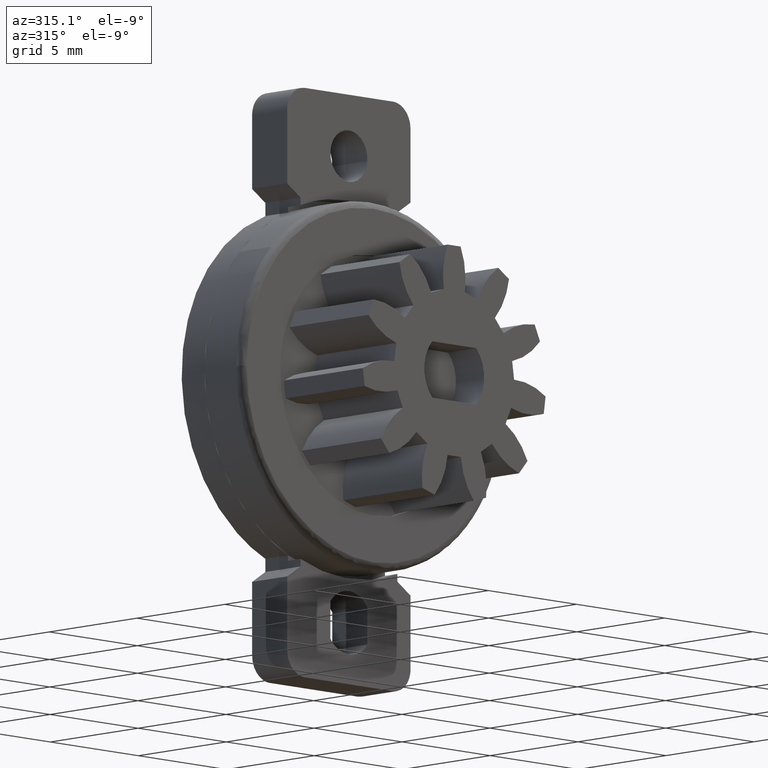
[diagram: clean part render]
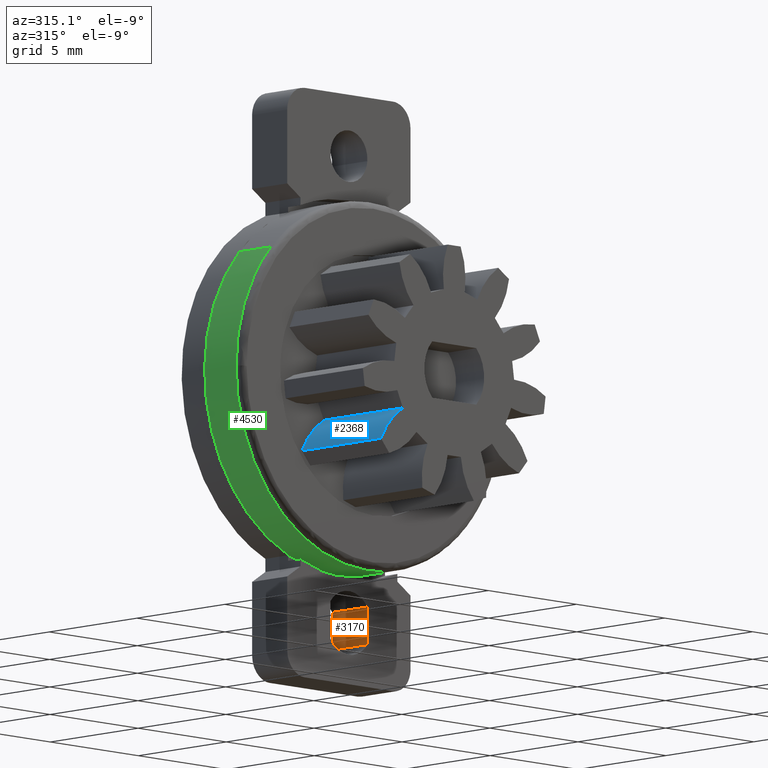
[diagram: same view with three faces highlighted in distinct colors, each labeled with its STEP entity id]
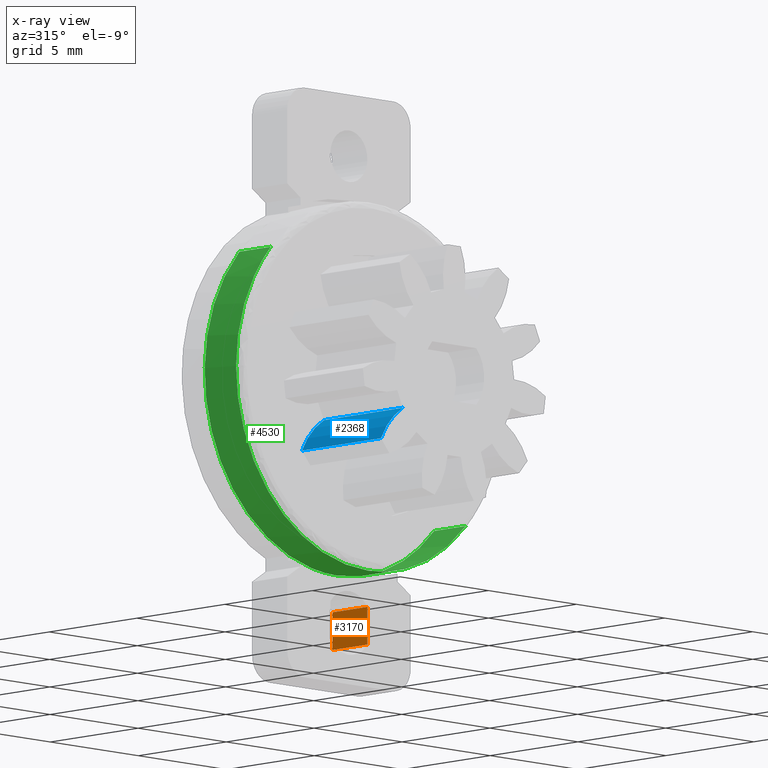
[diagram: x-ray of the same camera — body ghosted, the three highlighted faces saturated]
A machine part, auxiliary view with three faces highlighted in distinct colors.
The next image is the same camera in x-ray (body ghosted, the three faces saturated) — at least one of them is partly hidden behind the body in this view.
Their STEP definitions:

[orange] entity #3170 — the highlighted face is a freeform B-spline surface patch.
#3013=CARTESIAN_POINT('',(1.050000000000000,0.0,-8.733514514162200));
#3014=VERTEX_POINT('',#3013);
#3033=CARTESIAN_POINT('',(1.050000000000000,-2.0,-8.733514514162200));
#3034=VERTEX_POINT('',#3033);
#3035=CARTESIAN_POINT('',(1.050000000000000,-2.0,-8.733514514162200));
#3036=CARTESIAN_POINT('',(1.050000000000000,0.0,-8.733514514162200));
#3037=QUASI_UNIFORM_CURVE('',1,(#3035,#3036),.UNSPECIFIED.,.F.,.U.);
#3038=EDGE_CURVE('',#3034,#3014,#3037,.T.);
#3107=CARTESIAN_POINT('',(1.050000000000000,0.0,-10.266485485837800));
#3108=VERTEX_POINT('',#3107);
#3125=CARTESIAN_POINT('',(1.050000000000000,-2.0,-10.266485485837800));
#3126=VERTEX_POINT('',#3125);
#3143=CARTESIAN_POINT('',(1.050000000000000,-2.0,-10.266485485837800));
#3144=CARTESIAN_POINT('',(1.050000000000000,0.0,-10.266485485837800));
#3145=QUASI_UNIFORM_CURVE('',1,(#3143,#3144),.UNSPECIFIED.,.F.,.U.);
#3146=EDGE_CURVE('',#3126,#3108,#3145,.T.);
#3151=CARTESIAN_POINT('',(1.050000000000000,-2.099899996123612,-10.343057382901801));
#3152=CARTESIAN_POINT('',(1.050000000000000,-2.099899996123612,-8.656942575980715));
#3153=CARTESIAN_POINT('',(1.050000000000000,0.099900049767792,-10.343057382901801));
#3154=CARTESIAN_POINT('',(1.050000000000000,0.099900049767792,-8.656942575980715));
#3155=B_SPLINE_SURFACE_WITH_KNOTS('',1,1,((#3151,#3153),(#3152,#3154)),.UNSPECIFIED.,.F.,.F.,.U.,(2,2),(2,2),(0.041708334948495,0.958291687403247),(0.0,2.199800045891404),.UNSPECIFIED.);
#3156=CARTESIAN_POINT('',(1.050000000000000,0.0,-10.266485485837800));
#3157=CARTESIAN_POINT('',(1.050000000000000,0.0,-8.733514514162200));
#3158=QUASI_UNIFORM_CURVE('',1,(#3156,#3157),.UNSPECIFIED.,.F.,.U.);
#3159=EDGE_CURVE('',#3108,#3014,#3158,.T.);
#3160=ORIENTED_EDGE('',*,*,#3159,.F.);
#3161=ORIENTED_EDGE('',*,*,#3146,.F.);
#3162=CARTESIAN_POINT('',(1.050000000000000,-2.0,-10.266485485837800));
#3163=CARTESIAN_POINT('',(1.050000000000000,-2.0,-8.733514514162200));
#3164=QUASI_UNIFORM_CURVE('',1,(#3162,#3163),.UNSPECIFIED.,.F.,.U.);
#3165=EDGE_CURVE('',#3126,#3034,#3164,.T.);
#3166=ORIENTED_EDGE('',*,*,#3165,.T.);
#3167=ORIENTED_EDGE('',*,*,#3038,.T.);
#3168=EDGE_LOOP('',(#3160,#3161,#3166,#3167));
#3169=FACE_OUTER_BOUND('',#3168,.T.);
#3170=ADVANCED_FACE('',(#3169),#3155,.T.);

[blue] entity #2368 — the highlighted face is a freeform B-spline surface patch.
#629=CARTESIAN_POINT('',(-2.917143608324255,-8.0,-1.746503125795350));
#630=VERTEX_POINT('',#629);
#644=CARTESIAN_POINT('',(-4.157864792182010,-8.0,-3.122844916087450));
#645=VERTEX_POINT('',#644);
#646=CARTESIAN_POINT('',(-2.917143608324253,-8.0,-1.746503125795355));
#647=CARTESIAN_POINT('',(-3.748653505494959,-8.0,-2.244330737159556));
#648=CARTESIAN_POINT('',(-4.157864792181999,-8.0,-3.122844916087455));
#656=(BOUNDED_CURVE()B_SPLINE_CURVE(2,(#646,#647,#648),.UNSPECIFIED.,.F.,.U.)CURVE()GEOMETRIC_REPRESENTATION_ITEM()QUASI_UNIFORM_CURVE()RATIONAL_B_SPLINE_CURVE((1.0,0.956011273868736,1.0))REPRESENTATION_ITEM(''));
#657=EDGE_CURVE('',#630,#645,#656,.T.);
#1423=CARTESIAN_POINT('',(-4.157864792182010,-3.499999999999950,-3.122844916087450));
#1424=VERTEX_POINT('',#1423);
#1438=CARTESIAN_POINT('',(-2.917143608324255,-3.499999999999950,-1.746503125795350));
#1439=VERTEX_POINT('',#1438);
#1440=CARTESIAN_POINT('',(-2.917143608324253,-3.499999999999950,-1.746503125795355));
#1441=CARTESIAN_POINT('',(-3.748653505494959,-3.499999999999950,-2.244330737159556));
#1442=CARTESIAN_POINT('',(-4.157864792181999,-3.499999999999950,-3.122844916087455));
#1450=(BOUNDED_CURVE()B_SPLINE_CURVE(2,(#1440,#1441,#1442),.UNSPECIFIED.,.F.,.U.)CURVE()GEOMETRIC_REPRESENTATION_ITEM()QUASI_UNIFORM_CURVE()RATIONAL_B_SPLINE_CURVE((1.0,0.956011273868736,1.0))REPRESENTATION_ITEM(''));
#1451=EDGE_CURVE('',#1439,#1424,#1450,.T.);
#2334=CARTESIAN_POINT('',(-4.157864792182010,-3.499999999999950,-3.122844916087450));
#2335=CARTESIAN_POINT('',(-4.157864792182010,-8.0,-3.122844916087450));
#2336=QUASI_UNIFORM_CURVE('',1,(#2334,#2335),.UNSPECIFIED.,.F.,.U.);
#2337=EDGE_CURVE('',#1424,#645,#2336,.T.);
#2344=CARTESIAN_POINT('',(-4.195523273390152,-3.387499999999950,-3.206870505097822));
#2345=CARTESIAN_POINT('',(-4.195523273390152,-8.115312500000002,-3.206870505097822));
#2346=CARTESIAN_POINT('',(-3.771743163006734,-3.387499999999949,-2.223135589152727));
#2347=CARTESIAN_POINT('',(-3.771743163006734,-8.115312500000002,-2.223135589152727));
#2348=CARTESIAN_POINT('',(-2.836993376514745,-3.387499999999949,-1.700099449426926));
#2349=CARTESIAN_POINT('',(-2.836993376514745,-8.115312500000002,-1.700099449426926));
#2357=(BOUNDED_SURFACE()B_SPLINE_SURFACE(1,2,((#2344,#2346,#2348),(#2345,#2347,#2349)),.UNSPECIFIED.,.F.,.F.,.U.)B_SPLINE_SURFACE_WITH_KNOTS((2,2),(3,3),(0.0,4.727812500000052),(0.0,2.083975211491679),.UNSPECIFIED.)GEOMETRIC_REPRESENTATION_ITEM()RATIONAL_B_SPLINE_SURFACE(((0.997786540914082,0.942072450817485,0.991757776564649),(0.997786540914082,0.942072450817485,0.991757776564649)))REPRESENTATION_ITEM('')SURFACE());
#2358=ORIENTED_EDGE('',*,*,#657,.F.);
#2359=CARTESIAN_POINT('',(-2.917143608324255,-3.499999999999950,-1.746503125795350));
#2360=CARTESIAN_POINT('',(-2.917143608324255,-8.0,-1.746503125795350));
#2361=QUASI_UNIFORM_CURVE('',1,(#2359,#2360),.UNSPECIFIED.,.F.,.U.);
#2362=EDGE_CURVE('',#1439,#630,#2361,.T.);
#2363=ORIENTED_EDGE('',*,*,#2362,.F.);
#2364=ORIENTED_EDGE('',*,*,#1451,.T.);
#2365=ORIENTED_EDGE('',*,*,#2337,.T.);
#2366=EDGE_LOOP('',(#2358,#2363,#2364,#2365));
#2367=FACE_OUTER_BOUND('',#2366,.T.);
#2368=ADVANCED_FACE('',(#2367),#2357,.T.);

[green] entity #4530 — the highlighted face is a freeform B-spline surface patch.
#4378=CARTESIAN_POINT('',(5.529580363943104,-1.310000000000032,-5.066926188400083));
#4379=VERTEX_POINT('',#4378);
#4397=CARTESIAN_POINT('',(0.0,-1.310000000000032,-7.500000000000000));
#4398=VERTEX_POINT('',#4397);
#4399=CARTESIAN_POINT('',(0.0,-1.310000000000032,-7.500000000000000));
#4400=CARTESIAN_POINT('',(3.300079280154758,-1.310000000000032,-7.500000000000000));
#4401=CARTESIAN_POINT('',(5.529580363943116,-1.310000000000032,-5.066926188400096));
#4409=(BOUNDED_CURVE()B_SPLINE_CURVE(2,(#4399,#4400,#4401),.UNSPECIFIED.,.F.,.U.)B_SPLINE_CURVE_WITH_KNOTS((3,3),(0.500000000000000,0.631584800982089),.UNSPECIFIED.)CURVE()GEOMETRIC_REPRESENTATION_ITEM()RATIONAL_B_SPLINE_CURVE((1.0,0.845838816373714,0.853959782080453))REPRESENTATION_ITEM(''));
#4410=EDGE_CURVE('',#4398,#4379,#4409,.T.);
#4412=CARTESIAN_POINT('',(-5.529580363943104,-1.310000000000032,5.066926188400082));
#4413=VERTEX_POINT('',#4412);
#4414=CARTESIAN_POINT('',(-5.529580363943118,-1.310000000000032,5.066926188400095));
#4415=CARTESIAN_POINT('',(-7.500000000000001,-1.310000000000033,2.916590201029333));
#4416=CARTESIAN_POINT('',(-7.500000000000000,-1.310000000000032,0.0));
#4417=CARTESIAN_POINT('',(-7.500000000000000,-1.310000000000032,-7.500000000000000));
#4418=CARTESIAN_POINT('',(0.0,-1.310000000000032,-7.500000000000000));
#4426=(BOUNDED_CURVE()B_SPLINE_CURVE(2,(#4414,#4415,#4416,#4417,#4418),.UNSPECIFIED.,.F.,.U.)B_SPLINE_CURVE_WITH_KNOTS((3,2,3),(0.131584800982089,0.250000000000000,0.500000000000000),.UNSPECIFIED.)CURVE()GEOMETRIC_REPRESENTATION_ITEM()RATIONAL_B_SPLINE_CURVE((0.853959782080453,0.861267964812834,1.0,0.707106781186547,1.0))REPRESENTATION_ITEM(''));
#4427=EDGE_CURVE('',#4413,#4398,#4426,.T.);
#4451=CARTESIAN_POINT('',(-5.529580026075928,-1.265249999993982,5.066926557117450));
#4452=CARTESIAN_POINT('',(-10.596506583193378,-1.265249999993982,-0.462653468958478));
#4453=CARTESIAN_POINT('',(-5.066926557117450,-1.265249999993982,-5.529580026075928));
#4454=CARTESIAN_POINT('',(0.462653468958478,-1.265249999993982,-10.596506583193378));
#4455=CARTESIAN_POINT('',(5.529580026075928,-1.265249999993982,-5.066926557117450));
#4456=CARTESIAN_POINT('',(-5.529580026075928,-3.145868750248229,5.066926557117450));
#4457=CARTESIAN_POINT('',(-10.596506583193378,-3.145868750248229,-0.462653468958478));
#4458=CARTESIAN_POINT('',(-5.066926557117450,-3.145868750248229,-5.529580026075928));
#4459=CARTESIAN_POINT('',(0.462653468958478,-3.145868750248229,-10.596506583193378));
#4460=CARTESIAN_POINT('',(5.529580026075928,-3.145868750248229,-5.066926557117450));
#4468=(BOUNDED_SURFACE()B_SPLINE_SURFACE(2,1,((#4451,#4456),(#4452,#4457),(#4453,#4458),(#4454,#4459),(#4455,#4460)),.UNSPECIFIED.,.F.,.F.,.U.)B_SPLINE_SURFACE_WITH_KNOTS((3,2,3),(2,2),(0.0,12.426406871192849,24.852813742385688),(0.0,1.0),.UNSPECIFIED.)GEOMETRIC_REPRESENTATION_ITEM()RATIONAL_B_SPLINE_SURFACE(((1.0,1.0),(0.707106781186548,0.707106781186548),(1.0,1.0),(0.707106781186548,0.707106781186548),(1.0,1.0)))REPRESENTATION_ITEM('')SURFACE());
#4469=CARTESIAN_POINT('',(-7.499999999999998,-3.100000000242027,-8.755010E-016));
#4470=VERTEX_POINT('',#4469);
#4471=CARTESIAN_POINT('',(-5.529580297703821,-3.100000000128492,5.066926260687591));
#4472=VERTEX_POINT('',#4471);
#4473=CARTESIAN_POINT('',(-7.499999999999998,-3.100000000242027,-8.755010E-016));
#4474=CARTESIAN_POINT('',(-7.499999999999999,-3.100000000194968,2.916590257466233));
#4475=CARTESIAN_POINT('',(-5.529580297703832,-3.100000000128480,5.066926260687597));
#4483=(BOUNDED_CURVE()B_SPLINE_CURVE(2,(#4473,#4474,#4475),.UNSPECIFIED.,.F.,.U.)B_SPLINE_CURVE_WITH_KNOTS((3,3),(0.750000000000000,0.868415200991395),.UNSPECIFIED.)CURVE()GEOMETRIC_REPRESENTATION_ITEM()RATIONAL_B_SPLINE_CURVE((1.0,0.861267962500754,0.853959781836859))REPRESENTATION_ITEM(''));
#4484=EDGE_CURVE('',#4470,#4472,#4483,.T.);
#4485=ORIENTED_EDGE('',*,*,#4484,.T.);
#4486=CARTESIAN_POINT('',(-5.529580363943104,-1.310000000000032,5.066926188400082));
#4487=CARTESIAN_POINT('',(-5.529580297703821,-3.100000000128492,5.066926260687591));
#4488=QUASI_UNIFORM_CURVE('',1,(#4486,#4487),.UNSPECIFIED.,.F.,.U.);
#4489=EDGE_CURVE('',#4413,#4472,#4488,.T.);
#4490=ORIENTED_EDGE('',*,*,#4489,.F.);
#4491=ORIENTED_EDGE('',*,*,#4427,.T.);
#4492=ORIENTED_EDGE('',*,*,#4410,.T.);
#4493=CARTESIAN_POINT('',(5.529580297703821,-3.100000000128492,-5.066926260687592));
#4494=VERTEX_POINT('',#4493);
#4495=CARTESIAN_POINT('',(5.529580363943104,-1.310000000000032,-5.066926188400083));
#4496=CARTESIAN_POINT('',(5.529580297703821,-3.100000000128492,-5.066926260687592));
#4497=QUASI_UNIFORM_CURVE('',1,(#4495,#4496),.UNSPECIFIED.,.F.,.U.);
#4498=EDGE_CURVE('',#4379,#4494,#4497,.T.);
#4499=ORIENTED_EDGE('',*,*,#4498,.T.);
#4500=CARTESIAN_POINT('',(0.0,-3.100000000000000,-7.500000000000000));
#4501=VERTEX_POINT('',#4500);
#4502=CARTESIAN_POINT('',(5.529580297703829,-3.100000000128478,-5.066926260687600));
#4503=CARTESIAN_POINT('',(3.300079221640120,-3.100000000053247,-7.500000000000000));
#4504=CARTESIAN_POINT('',(0.0,-3.100000000000000,-7.500000000000000));
#4512=(BOUNDED_CURVE()B_SPLINE_CURVE(2,(#4502,#4503,#4504),.UNSPECIFIED.,.F.,.U.)B_SPLINE_CURVE_WITH_KNOTS((3,3),(0.368415200991395,0.500000000000000),.UNSPECIFIED.)CURVE()GEOMETRIC_REPRESENTATION_ITEM()RATIONAL_B_SPLINE_CURVE((0.853959781836859,0.845838818685793,1.0))REPRESENTATION_ITEM(''));
#4513=EDGE_CURVE('',#4494,#4501,#4512,.T.);
#4514=ORIENTED_EDGE('',*,*,#4513,.T.);
#4515=CARTESIAN_POINT('',(0.0,-3.100000000000000,-7.500000000000000));
#4516=CARTESIAN_POINT('',(-7.499999999999998,-3.100000000121014,-7.500000000000000));
#4517=CARTESIAN_POINT('',(-7.499999999999998,-3.100000000242027,-8.755010E-016));
#4525=(BOUNDED_CURVE()B_SPLINE_CURVE(2,(#4515,#4516,#4517),.UNSPECIFIED.,.F.,.U.)B_SPLINE_CURVE_WITH_KNOTS((3,3),(0.500000000000000,0.750000000000000),.UNSPECIFIED.)CURVE()GEOMETRIC_REPRESENTATION_ITEM()RATIONAL_B_SPLINE_CURVE((1.0,0.707106781186547,1.0))REPRESENTATION_ITEM(''));
#4526=EDGE_CURVE('',#4501,#4470,#4525,.T.);
#4527=ORIENTED_EDGE('',*,*,#4526,.T.);
#4528=EDGE_LOOP('',(#4485,#4490,#4491,#4492,#4499,#4514,#4527));
#4529=FACE_OUTER_BOUND('',#4528,.T.);
#4530=ADVANCED_FACE('',(#4529),#4468,.T.);